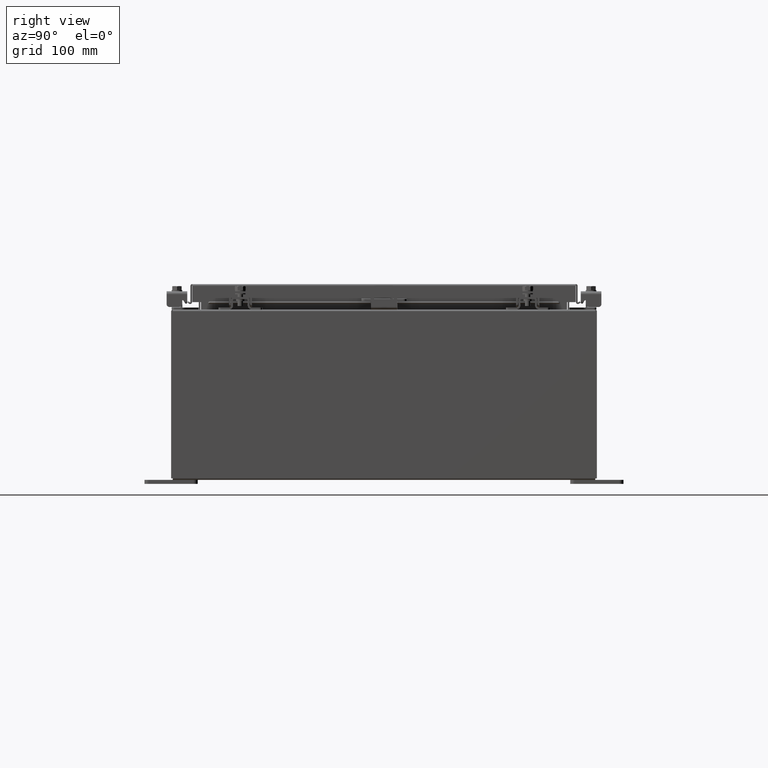
[diagram: clean part render]
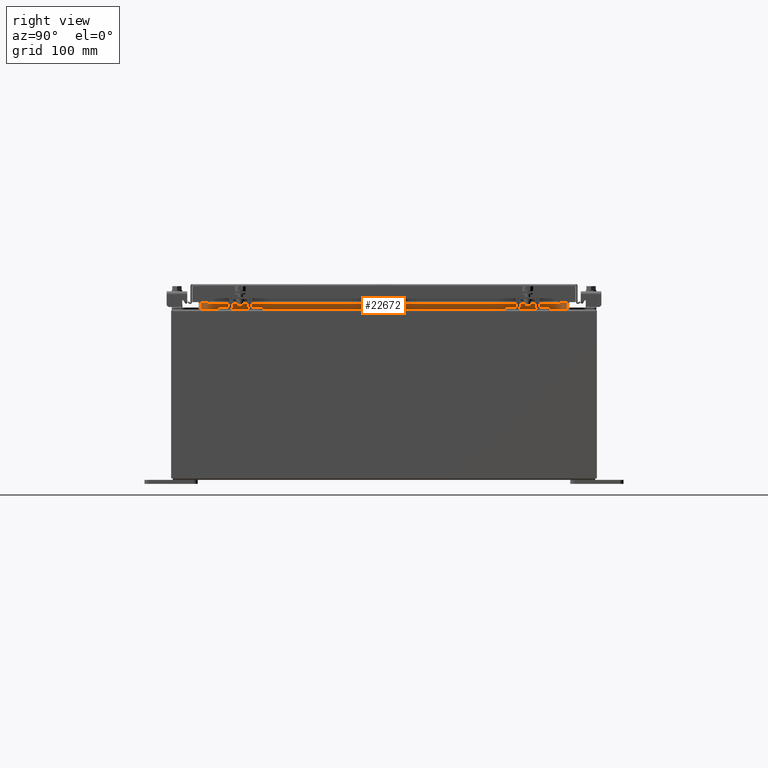
[diagram: same view with one face highlighted and labeled with its STEP entity id]
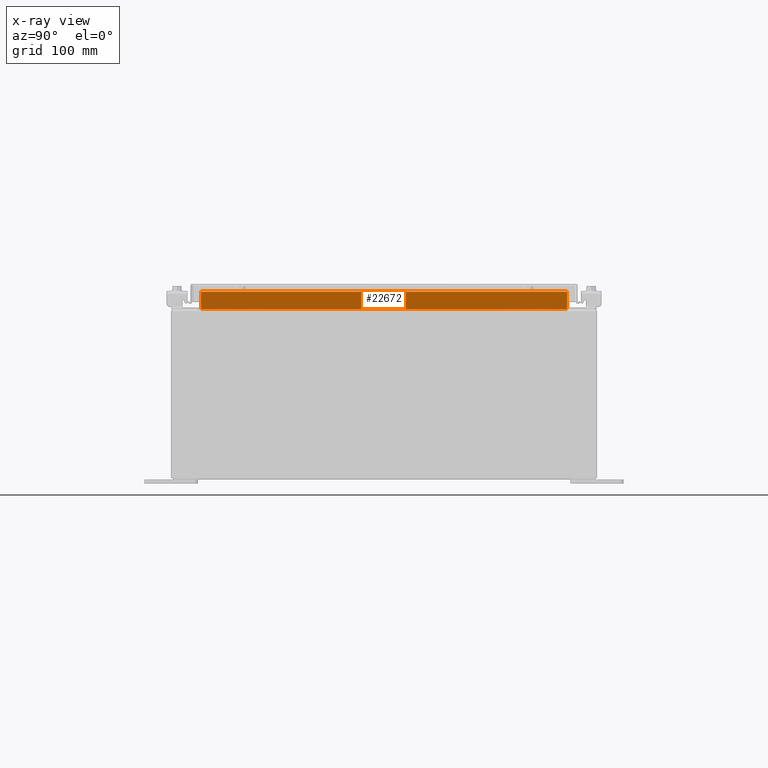
[diagram: x-ray of the same camera — body ghosted, the highlighted face saturated]
A machine part, right view. The second image highlights one B-rep face of the part: STEP entity #22672.
The next image is the same camera in x-ray: the body ghosted, the highlighted face saturated — about 0% of this face is hidden behind the body in this view.
In plain terms, the highlighted planar face has unit normal (1, 0, -0).
Its self-contained STEP definition (entity closure, byte-faithful):
#678 = VECTOR ( 'NONE', #15514, 39.37007874015748100 ) ;
#1991 = CARTESIAN_POINT ( 'NONE',  ( 10.69970000000002800, -8.593750000000003600, 7.938300000000011500 ) ) ;
#2306 = DIRECTION ( 'NONE',  ( 1.000000000000000000, 1.271551066141908700E-016, -2.361913319930196000E-015 ) ) ;
#3735 = LINE ( 'NONE', #6429, #15141 ) ;
#4325 = ORIENTED_EDGE ( 'NONE', *, *, #13958, .F. ) ;
#4480 = PLANE ( 'NONE',  #21061 ) ;
#5635 = CARTESIAN_POINT ( 'NONE',  ( 10.69970000000002800, 8.593749999999996400, 7.938300000000011500 ) ) ;
#6429 = CARTESIAN_POINT ( 'NONE',  ( 10.69970000000003200, -8.593750000000001800, 8.850600000000010700 ) ) ;
#7264 = VECTOR ( 'NONE', #19955, 39.37007874015748100 ) ;
#8741 = DIRECTION ( 'NONE',  ( 4.723826639860397600E-015, -0.0000000000000000000, 1.000000000000000000 ) ) ;
#9509 = ORIENTED_EDGE ( 'NONE', *, *, #14302, .F. ) ;
#9524 = VERTEX_POINT ( 'NONE', #5635 ) ;
#11597 = ORIENTED_EDGE ( 'NONE', *, *, #25024, .F. ) ;
#11723 = FACE_OUTER_BOUND ( 'NONE', #19224, .T. ) ;
#12847 = LINE ( 'NONE', #26719, #24237 ) ;
#13169 = DIRECTION ( 'NONE',  ( 2.543102132283823400E-016, -1.000000000000000000, 3.814653198425735100E-016 ) ) ;
#13312 = LINE ( 'NONE', #29009, #7264 ) ;
#13958 = EDGE_CURVE ( 'NONE', #9524, #21503, #12847, .T. ) ;
#14302 = EDGE_CURVE ( 'NONE', #24640, #15566, #13312, .T. ) ;
#15141 = VECTOR ( 'NONE', #8741, 39.37007874015748100 ) ;
#15514 = DIRECTION ( 'NONE',  ( -2.361913319930196000E-015, -0.0000000000000000000, -1.000000000000000000 ) ) ;
#15566 = VERTEX_POINT ( 'NONE', #27679 ) ;
#18235 = DIRECTION ( 'NONE',  ( -2.361913319930196000E-015, 0.0000000000000000000, -1.000000000000000000 ) ) ;
#18845 = LINE ( 'NONE', #29145, #678 ) ;
#19224 = EDGE_LOOP ( 'NONE', ( #22000, #9509, #11597, #4325 ) ) ;
#19955 = DIRECTION ( 'NONE',  ( 0.0000000000000000000, 1.000000000000000000, 0.0000000000000000000 ) ) ;
#20909 = CARTESIAN_POINT ( 'NONE',  ( 10.69970000000003200, -8.593750000000001800, 8.762900000000010800 ) ) ;
#21061 = AXIS2_PLACEMENT_3D ( 'NONE', #29459, #2306, #18235 ) ;
#21503 = VERTEX_POINT ( 'NONE', #1991 ) ;
#22000 = ORIENTED_EDGE ( 'NONE', *, *, #29517, .F. ) ;
#22672 = ADVANCED_FACE ( 'NONE', ( #11723 ), #4480, .T. ) ;
#24237 = VECTOR ( 'NONE', #13169, 39.37007874015748100 ) ;
#24640 = VERTEX_POINT ( 'NONE', #20909 ) ;
#25024 = EDGE_CURVE ( 'NONE', #21503, #24640, #3735, .T. ) ;
#26719 = CARTESIAN_POINT ( 'NONE',  ( 10.69970000000002800, 8.593749999999998200, 7.938300000000008800 ) ) ;
#27679 = CARTESIAN_POINT ( 'NONE',  ( 10.69970000000003200, 8.593749999999998200, 8.762900000000010800 ) ) ;
#29009 = CARTESIAN_POINT ( 'NONE',  ( 10.69970000000003200, -8.593750000000001800, 8.762900000000010800 ) ) ;
#29145 = CARTESIAN_POINT ( 'NONE',  ( 10.69970000000002800, 8.593749999999998200, 7.925300000000008900 ) ) ;
#29459 = CARTESIAN_POINT ( 'NONE',  ( 10.69970000000000900, 1.360521494239859100E-015, -2.527176394925713800E-014 ) ) ;
#29517 = EDGE_CURVE ( 'NONE', #15566, #9524, #18845, .T. ) ;